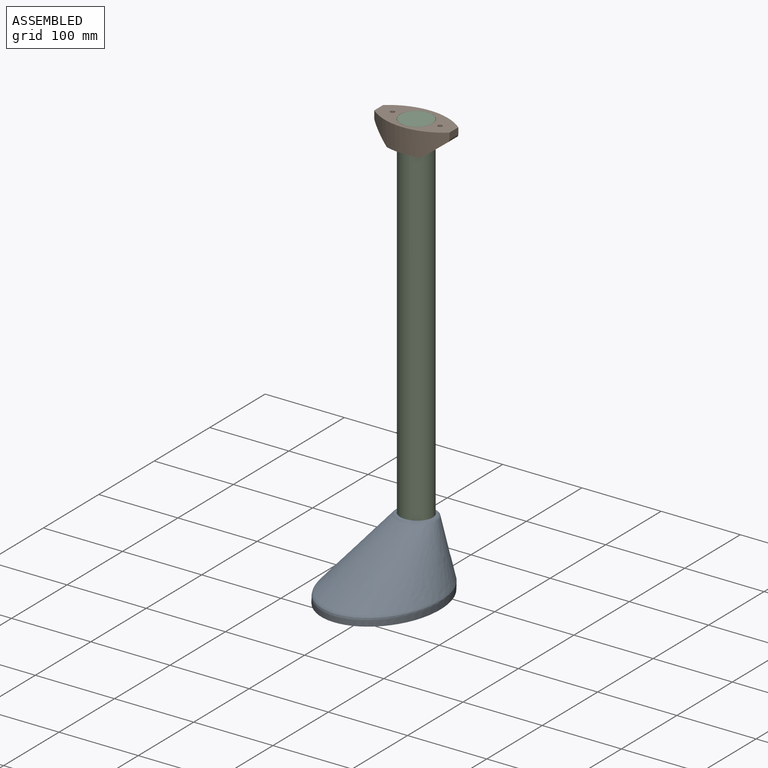
[diagram: assembled view]
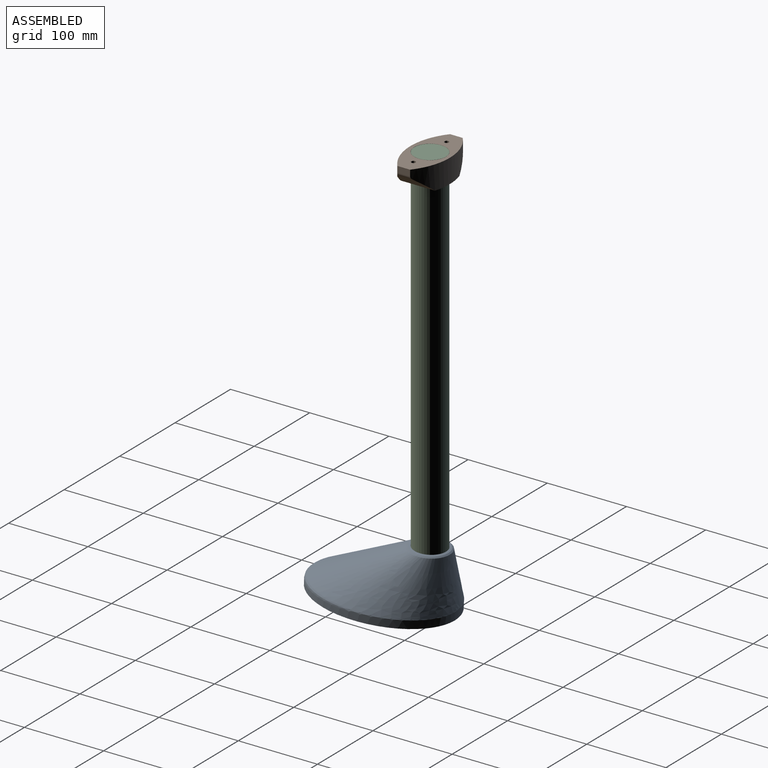
[diagram: assembled view, second angle]
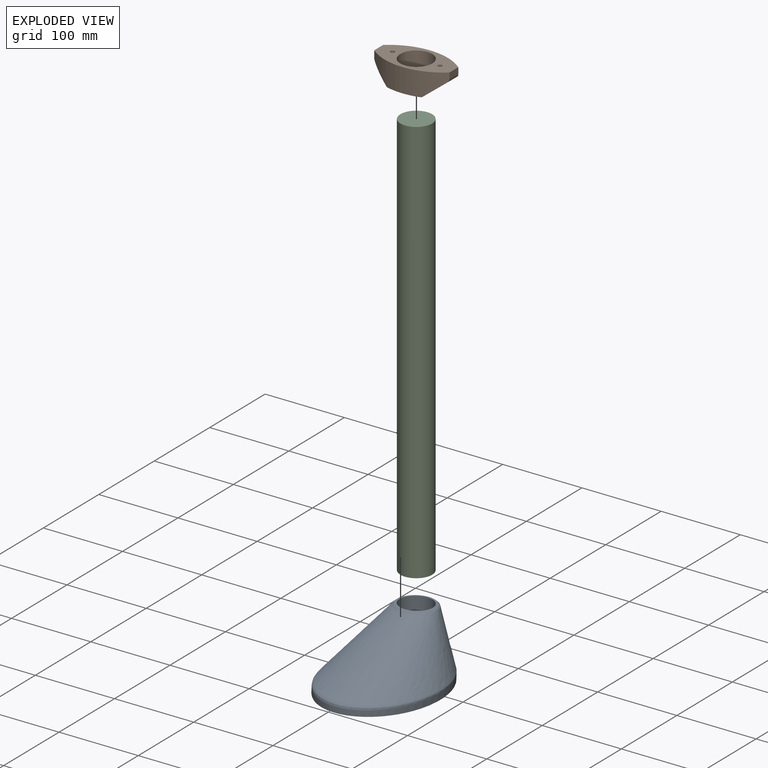
[diagram: exploded view]
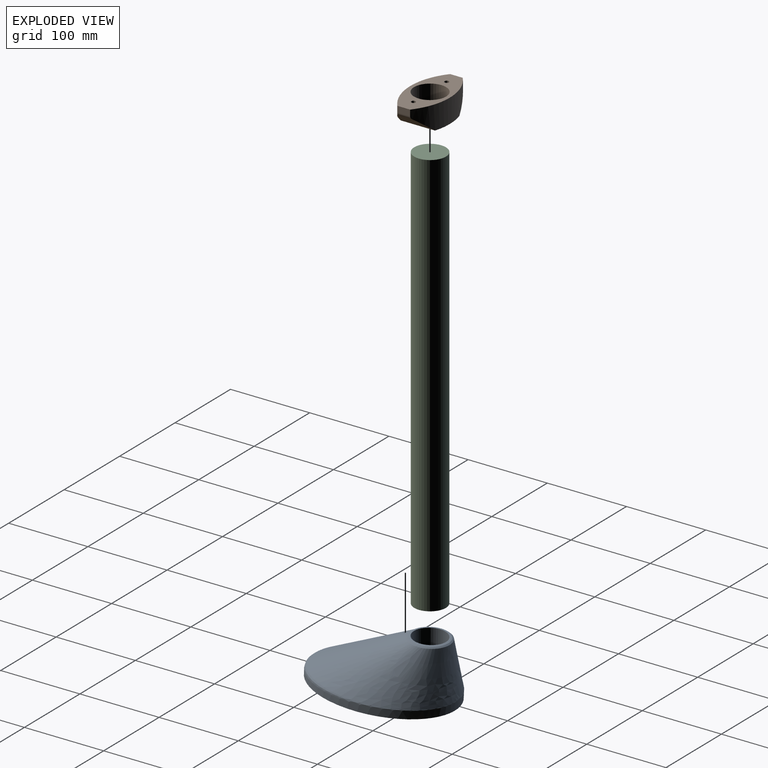
[diagram: exploded view, second angle]
ASSEMBLY  parts=3 mates=2
PART A: 8 faces, bbox 137.2x183x80.6 mm
  f0: extruded ~179.29x133.47mm, area 4148.2mm2, adj f1,f7
  f1: plane 179.29x133.47mm, normal (0,0,-1), area 18795mm2, adj f0
  f2: plane 45.72x45.72mm, normal (0,0,1), area 102.2mm2, adj f5,f6
  f3: bspline ~178.39x132.89mm, area 27204.5mm2, adj f6,f7
  f4: cone r=20.2mm half-angle=88.9deg, axis (0,-0.05,1), area 1282.1mm2, adj f5
  f5: cylinder r=20.2mm len=67.64mm, axis (0,-0.05,1), area 8357.8mm2, adj f2,f4
  f6: bspline ~49.97x49.95mm, area 674.7mm2, adj f2,f3
  f7: bspline ~179.31x133.51mm, area 1483.9mm2, adj f0,f3
PART B: 15 faces, bbox 95x49.9x30 mm
  f0: plane 95x49.91mm, normal (0,0,1), area 2387.6mm2, adj f1,f7,f8,f9,f10,f11,f13
  f1: plane 16x7.57mm, normal (-1,0,0), area 121.1mm2, adj f0,f2,f9,f10
  f2: cylinder r=5mm len=19.03mm, axis (0,1,0), area 77.2mm2, adj f1,f3,f9,f10
  f3: plane 43.32x23.59mm, normal (-0.62,0,-0.79), area 987.6mm2, adj f2,f4,f9,f10
  f4: plane 49.91x44mm, normal (0,0,-1), area 812.1mm2, adj f3,f5,f8,f9,f10
  f5: plane 43.32x23.59mm, normal (0.62,0,-0.79), area 987.6mm2, adj f4,f6,f9,f10
  f6: cylinder r=5mm len=19.03mm, axis (0,1,0), area 77.2mm2, adj f5,f7,f9,f10
  f7: plane 16x7.57mm, normal (1,0,0), area 121.1mm2, adj f0,f6,f9,f10
  f8: cylinder r=20.25mm len=40.5mm, axis (0,0,-1), area 3817mm2, adj f0,f4
  f9: cylinder r=75.01mm len=95mm, axis (0,0,1), area 2481.7mm2, adj f0,f1,f2,f3,f4,f5,f6,f7
  f10: cylinder r=75.01mm len=95mm, axis (0,0,1), area 2481.7mm2, adj f0,f1,f2,f3,f4,f5,f6,f7
  f11: cylinder r=2.7mm len=20mm, axis (0,0,1), area 339.3mm2, adj f0,f12
  f12: plane 5.4x5.4mm, normal (0,0,1), area 22.9mm2, adj f11
  f13: cylinder r=2.7mm len=20mm, axis (0,0,1), area 339.3mm2, adj f0,f14
  f14: plane 5.4x5.4mm, normal (0,0,1), area 22.9mm2, adj f13
PART C: 3 faces, bbox 40x40x515 mm
  f0: cylinder r=20mm len=515mm, axis (0,0,-1), area 64716.8mm2, adj f1,f2
  f1: plane 40x40mm, normal (0,0,1), area 1256.6mm2, adj f0
  f2: plane 40x40mm, normal (0,0,-1), area 1256.6mm2, adj f0
PLACE A rot(axis=(-1,0,0),2.6deg) t=(26.48,20.27,-259.31)mm
PLACE B t=(26.48,20.72,265.64)mm
PLACE C t=(26.48,20.72,-249.36)mm
MATE cylindrical A.f4 <-> C.f0  axis (0,0,1) through (26.48,20.72,-249.36)mm
MATE cylindrical B.f8 <-> C.f0  axis (0,0,-1) through (26.48,20.72,265.64)mm
